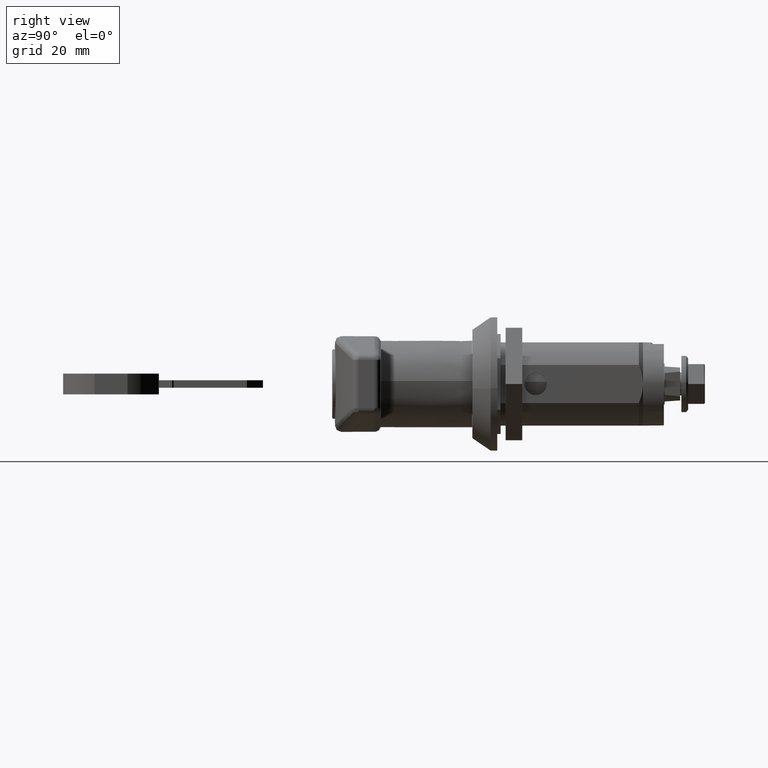
[diagram: clean part render]
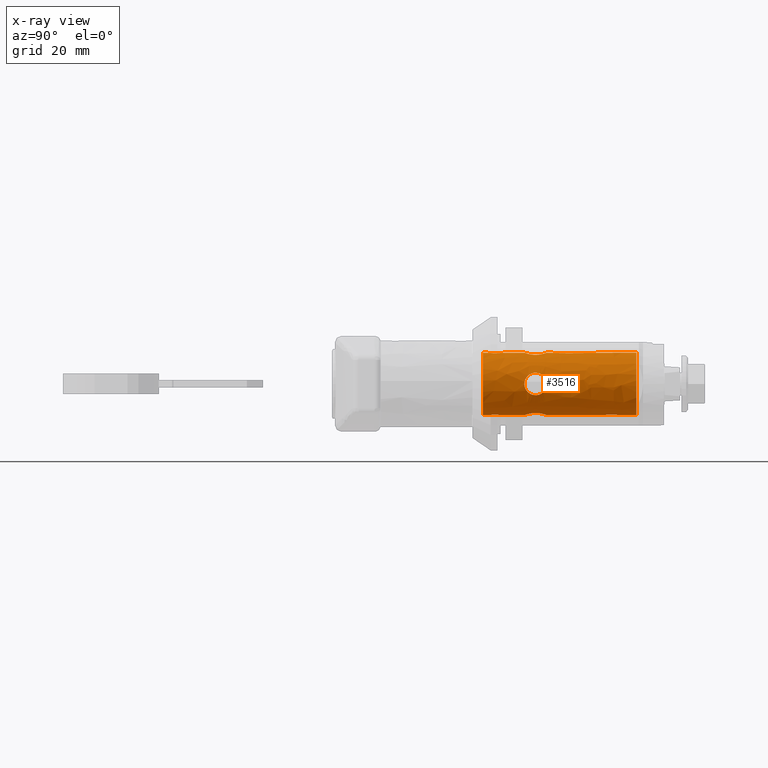
[diagram: x-ray — body ghosted, one internal face saturated and labeled with its STEP entity id]
A machine part, right view, then the same camera in x-ray: the body is ghosted and one INTERNAL B-rep face — a face not visible from any outside direction — is saturated and labeled: STEP entity #3516.
In plain terms, the highlighted face is a freeform B-spline surface patch.
Its self-contained STEP definition (entity closure, byte-faithful):
#2931=CARTESIAN_POINT('',(34.322499715015304,5.687844982534621,-4.888541153176699));
#2932=CARTESIAN_POINT('',(34.322499715015297,1.071277839172529,-10.259877128055640));
#2933=CARTESIAN_POINT('',(34.322499715015297,-4.555298304420883,-5.958065504501604));
#2934=CARTESIAN_POINT('',(34.322499715015311,-10.513423626847409,-1.402767200080722));
#2935=CARTESIAN_POINT('',(34.322499715015297,-5.958125322426525,4.555358122345804));
#2936=CARTESIAN_POINT('',(34.322499715015311,-1.402827018005643,10.513483444772330));
#2937=CARTESIAN_POINT('',(34.322499715015297,4.555298304420883,5.958185140351446));
#2938=CARTESIAN_POINT('',(-4.445562784984761,5.687844982534621,-4.888541153176699));
#2939=CARTESIAN_POINT('',(-4.445562784984761,1.071277839172529,-10.259877128055640));
#2940=CARTESIAN_POINT('',(-4.445562784984761,-4.555298304420883,-5.958065504501604));
#2941=CARTESIAN_POINT('',(-4.445562784984761,-10.513423626847409,-1.402767200080722));
#2942=CARTESIAN_POINT('',(-4.445562784984759,-5.958125322426525,4.555358122345804));
#2943=CARTESIAN_POINT('',(-4.445562784984758,-1.402827018005643,10.513483444772330));
#2944=CARTESIAN_POINT('',(-4.445562784984757,4.555298304420883,5.958185140351446));
#2952=(BOUNDED_SURFACE()B_SPLINE_SURFACE(2,1,((#2931,#2938),(#2932,#2939),(#2933,#2940),(#2934,#2941),(#2935,#2942),(#2936,#2943),(#2937,#2944)),.UNSPECIFIED.,.F.,.F.,.U.)B_SPLINE_SURFACE_WITH_KNOTS((3,2,2,3),(2,2),(0.0,11.929350596345140,24.355757467537980,36.782164338730837),(0.0,38.768062500000070),.UNSPECIFIED.)GEOMETRIC_REPRESENTATION_ITEM()RATIONAL_B_SPLINE_SURFACE(((0.977505800795127,0.977505800795127),(0.718822509939086,0.718822509939086),(1.0,1.0),(0.707106781186548,0.707106781186548),(1.0,1.0),(0.707106781186548,0.707106781186548),(1.0,1.0)))REPRESENTATION_ITEM('')SURFACE());
#2953=CARTESIAN_POINT('',(33.399999715015312,5.687845201488536,-4.888540898425690));
#2954=VERTEX_POINT('',#2953);
#2955=CARTESIAN_POINT('',(33.399999715015312,0.0,-7.499940182075079));
#2956=VERTEX_POINT('',#2955);
#2957=CARTESIAN_POINT('',(33.399999715015312,5.687845201488535,-4.888540898425690));
#2958=CARTESIAN_POINT('',(33.399999715015305,3.443394658302696,-7.499940182075079));
#2959=CARTESIAN_POINT('',(33.399999715015312,0.0,-7.499940182075079));
#2967=(BOUNDED_CURVE()B_SPLINE_CURVE(2,(#2957,#2958,#2959),.UNSPECIFIED.,.F.,.U.)B_SPLINE_CURVE_WITH_KNOTS((3,3),(0.863613843155698,1.0),.UNSPECIFIED.)CURVE()GEOMETRIC_REPRESENTATION_ITEM()RATIONAL_B_SPLINE_CURVE((0.854768495064645,0.840213678081104,1.0))REPRESENTATION_ITEM(''));
#2968=EDGE_CURVE('',#2954,#2956,#2967,.T.);
#2969=ORIENTED_EDGE('',*,*,#2968,.F.);
#2970=CARTESIAN_POINT('',(-3.500000284984760,5.687845198849672,-4.888540901495984));
#2971=VERTEX_POINT('',#2970);
#2972=CARTESIAN_POINT('',(33.399999715015312,5.687845201488536,-4.888540898425690));
#2973=CARTESIAN_POINT('',(-3.500000284984760,5.687845198849672,-4.888540901495984));
#2974=QUASI_UNIFORM_CURVE('',1,(#2972,#2973),.UNSPECIFIED.,.F.,.U.);
#2975=EDGE_CURVE('',#2954,#2971,#2974,.T.);
#2976=ORIENTED_EDGE('',*,*,#2975,.T.);
#2977=CARTESIAN_POINT('',(-3.500000284984760,0.0,-7.499940182075079));
#2978=VERTEX_POINT('',#2977);
#2979=CARTESIAN_POINT('',(-3.500000284984760,5.687845198849673,-4.888540901495984));
#2980=CARTESIAN_POINT('',(-3.500000284984759,3.443394653400818,-7.499940182075078));
#2981=CARTESIAN_POINT('',(-3.500000284984760,0.0,-7.499940182075079));
#2989=(BOUNDED_CURVE()B_SPLINE_CURVE(2,(#2979,#2980,#2981),.UNSPECIFIED.,.F.,.U.)B_SPLINE_CURVE_WITH_KNOTS((3,3),(0.863613843318829,1.0),.UNSPECIFIED.)CURVE()GEOMETRIC_REPRESENTATION_ITEM()RATIONAL_B_SPLINE_CURVE((0.854768495029828,0.840213678272224,1.0))REPRESENTATION_ITEM(''));
#2990=EDGE_CURVE('',#2971,#2978,#2989,.T.);
#2991=ORIENTED_EDGE('',*,*,#2990,.T.);
#2992=CARTESIAN_POINT('',(-3.500000284984760,0.0,7.500059817924920));
#2993=VERTEX_POINT('',#2992);
#2994=CARTESIAN_POINT('',(-3.500000284984760,0.0,-7.499940182075079));
#2995=CARTESIAN_POINT('',(-3.500000284984759,-7.500000000000000,-7.499940182075079));
#2996=CARTESIAN_POINT('',(-3.500000284984760,-7.500000000000000,0.000059817924921));
#2997=CARTESIAN_POINT('',(-3.500000284984759,-7.500000000000000,7.500059817924921));
#2998=CARTESIAN_POINT('',(-3.500000284984760,0.0,7.500059817924920));
#3006=(BOUNDED_CURVE()B_SPLINE_CURVE(2,(#2994,#2995,#2996,#2997,#2998),.UNSPECIFIED.,.F.,.U.)B_SPLINE_CURVE_WITH_KNOTS((3,2,3),(0.0,0.250000000000000,0.500000000000000),.UNSPECIFIED.)CURVE()GEOMETRIC_REPRESENTATION_ITEM()RATIONAL_B_SPLINE_CURVE((1.0,0.707106781186547,1.0,0.707106781186547,1.0))REPRESENTATION_ITEM(''));
#3007=EDGE_CURVE('',#2978,#2993,#3006,.T.);
#3008=ORIENTED_EDGE('',*,*,#3007,.T.);
#3009=CARTESIAN_POINT('',(-3.500000284984755,4.555293379714286,5.958188905540659));
#3010=VERTEX_POINT('',#3009);
#3011=CARTESIAN_POINT('',(-3.500000284984760,0.0,7.500059817924920));
#3012=CARTESIAN_POINT('',(-3.500000284984759,2.538592112279726,7.500059817924921));
#3013=CARTESIAN_POINT('',(-3.500000284984755,4.555293379714287,5.958188905540659));
#3021=(BOUNDED_CURVE()B_SPLINE_CURVE(2,(#3011,#3012,#3013),.UNSPECIFIED.,.F.,.U.)B_SPLINE_CURVE_WITH_KNOTS((3,3),(0.500000000000000,0.604955367462468),.UNSPECIFIED.)CURVE()GEOMETRIC_REPRESENTATION_ITEM()RATIONAL_B_SPLINE_CURVE((1.0,0.877037138368677,0.857319175351370))REPRESENTATION_ITEM(''));
#3022=EDGE_CURVE('',#2993,#3010,#3021,.T.);
#3023=ORIENTED_EDGE('',*,*,#3022,.T.);
#3024=CARTESIAN_POINT('',(33.399999715015383,4.555293319633844,5.958188951475139));
#3025=VERTEX_POINT('',#3024);
#3026=CARTESIAN_POINT('',(33.399999715015383,4.555293319633844,5.958188951475139));
#3027=CARTESIAN_POINT('',(-3.500000284984755,4.555293379714286,5.958188905540659));
#3028=QUASI_UNIFORM_CURVE('',1,(#3026,#3027),.UNSPECIFIED.,.F.,.U.);
#3029=EDGE_CURVE('',#3025,#3010,#3028,.T.);
#3030=ORIENTED_EDGE('',*,*,#3029,.F.);
#3031=CARTESIAN_POINT('',(33.399999715015312,0.0,7.500059817924920));
#3032=VERTEX_POINT('',#3031);
#3033=CARTESIAN_POINT('',(33.399999715015312,0.0,7.500059817924920));
#3034=CARTESIAN_POINT('',(33.399999715015305,2.538592070133298,7.500059817924921));
#3035=CARTESIAN_POINT('',(33.399999715015390,4.555293319633843,5.958188951475139));
#3043=(BOUNDED_CURVE()B_SPLINE_CURVE(2,(#3033,#3034,#3035),.UNSPECIFIED.,.F.,.U.)B_SPLINE_CURVE_WITH_KNOTS((3,3),(0.500000000000000,0.604955365934231),.UNSPECIFIED.)CURVE()GEOMETRIC_REPRESENTATION_ITEM()RATIONAL_B_SPLINE_CURVE((1.0,0.877037140159117,0.857319175925590))REPRESENTATION_ITEM(''));
#3044=EDGE_CURVE('',#3032,#3025,#3043,.T.);
#3045=ORIENTED_EDGE('',*,*,#3044,.F.);
#3046=CARTESIAN_POINT('',(33.399999715015312,0.0,-7.499940182075079));
#3047=CARTESIAN_POINT('',(33.399999715015298,-7.500000000000000,-7.499940182075079));
#3048=CARTESIAN_POINT('',(33.399999715015312,-7.500000000000000,0.000059817924921));
#3049=CARTESIAN_POINT('',(33.399999715015298,-7.500000000000000,7.500059817924921));
#3050=CARTESIAN_POINT('',(33.399999715015312,0.0,7.500059817924920));
#3058=(BOUNDED_CURVE()B_SPLINE_CURVE(2,(#3046,#3047,#3048,#3049,#3050),.UNSPECIFIED.,.F.,.U.)B_SPLINE_CURVE_WITH_KNOTS((3,2,3),(0.0,0.250000000000000,0.500000000000000),.UNSPECIFIED.)CURVE()GEOMETRIC_REPRESENTATION_ITEM()RATIONAL_B_SPLINE_CURVE((1.0,0.707106781186547,1.0,0.707106781186547,1.0))REPRESENTATION_ITEM(''));
#3059=EDGE_CURVE('',#2956,#3032,#3058,.T.);
#3060=ORIENTED_EDGE('',*,*,#3059,.F.);
#3061=EDGE_LOOP('',(#2969,#2976,#2991,#3008,#3023,#3030,#3045,#3060));
#3062=FACE_OUTER_BOUND('',#3061,.T.);
#3063=CARTESIAN_POINT('',(9.200000436976493,-6.997142224328951,-2.699940310318206));
#3064=VERTEX_POINT('',#3063);
#3065=CARTESIAN_POINT('',(6.500922286345380,-7.499667272586390,-0.070618030298371));
#3066=VERTEX_POINT('',#3065);
#3067=CARTESIAN_POINT('',(9.200000436976493,-6.997142224328951,-2.699940310318206));
#3068=CARTESIAN_POINT('',(9.019978000232202,-6.997142224329012,-2.699940307478623));
#3069=CARTESIAN_POINT('',(8.843296185095907,-7.004091317242306,-2.682119283430979));
#3070=CARTESIAN_POINT('',(8.582994913152220,-7.023760395034708,-2.629984828432132));
#3071=CARTESIAN_POINT('',(8.497020098257821,-7.031857323734833,-2.608339917970426));
#3072=CARTESIAN_POINT('',(8.369257379448987,-7.046158054440178,-2.569346389895856));
#3073=CARTESIAN_POINT('',(8.326761300261488,-7.051299410810565,-2.555215810111102));
#3074=CARTESIAN_POINT('',(8.243021733479482,-7.062158683257149,-2.525048425384778));
#3075=CARTESIAN_POINT('',(8.201712120274975,-7.067881886499142,-2.508997832714048));
#3076=CARTESIAN_POINT('',(7.997885601281960,-7.097821230733318,-2.424013132876124));
#3077=CARTESIAN_POINT('',(7.843452523276336,-7.125995264576594,-2.341033336102261));
#3078=CARTESIAN_POINT('',(7.624239752729543,-7.172023499937681,-2.194184976875738));
#3079=CARTESIAN_POINT('',(7.552952737973148,-7.188074937719358,-2.141191492472541));
#3080=CARTESIAN_POINT('',(7.417162093818700,-7.220399480182492,-2.029523839609277));
#3081=CARTESIAN_POINT('',(7.352415694611361,-7.236714156852774,-1.970736744140125));
#3082=CARTESIAN_POINT('',(7.167325268859246,-7.285437808967878,-1.785627702139074));
#3083=CARTESIAN_POINT('',(7.055929160639894,-7.317664810662246,-1.650504449900696));
#3084=CARTESIAN_POINT('',(6.858563652801960,-7.377906548295433,-1.356065418482295));
#3085=CARTESIAN_POINT('',(6.775641730954193,-7.404962231361491,-1.201339526162478));
#3086=CARTESIAN_POINT('',(6.674178744402022,-7.439003468386915,-0.958028806741774));
#3087=CARTESIAN_POINT('',(6.644207662032840,-7.449261356868416,-0.875041693923085));
#3088=CARTESIAN_POINT('',(6.592210202072740,-7.467261140494708,-0.705141215394882));
#3089=CARTESIAN_POINT('',(6.570143854533312,-7.475017870509393,-0.617817013920480));
#3090=CARTESIAN_POINT('',(6.522165661907524,-7.491995872207235,-0.378413386886494));
#3091=CARTESIAN_POINT('',(6.504943187807220,-7.498212362952954,-0.225122517864502));
#3092=CARTESIAN_POINT('',(6.500922286345380,-7.499667272586390,-0.070618030298371));
#3093=B_SPLINE_CURVE_WITH_KNOTS('',3,(#3067,#3068,#3069,#3070,#3071,#3072,#3073,#3074,#3075,#3076,#3077,#3078,#3079,#3080,#3081,#3082,#3083,#3084,#3085,#3086,#3087,#3088,#3089,#3090,#3091,#3092),.UNSPECIFIED.,.F.,.U.,(4,2,2,2,2,2,2,2,2,2,2,2,4),(0.0,0.031250000000000,0.046875000000000,0.054687500000000,0.062500000000000,0.093750000000000,0.109375000000000,0.125000000000000,0.156250000000000,0.187500000000000,0.203125000000000,0.218750000000000,0.245961239676139),.UNSPECIFIED.);
#3094=EDGE_CURVE('',#3064,#3066,#3093,.T.);
#3095=ORIENTED_EDGE('',*,*,#3094,.F.);
#3096=CARTESIAN_POINT('',(11.899075409269990,-7.499666977338961,0.070737583461391));
#3097=VERTEX_POINT('',#3096);
#3098=CARTESIAN_POINT('',(11.899075409269990,-7.499666977338961,0.070737583461391));
#3099=CARTESIAN_POINT('',(11.899696762539490,-7.499890570216899,0.047012065021035));
#3100=CARTESIAN_POINT('',(11.900004223693500,-7.500001317050645,0.023312550084161));
#3101=CARTESIAN_POINT('',(11.899972788187890,-7.499990000268207,-0.178295688080510));
#3102=CARTESIAN_POINT('',(11.882527531138759,-7.493655802824860,-0.354785295844827));
#3103=CARTESIAN_POINT('',(11.838735942462380,-7.478158682035270,-0.573584015759407));
#3104=CARTESIAN_POINT('',(11.828838235837649,-7.474669370283182,-0.617367212491177));
#3105=CARTESIAN_POINT('',(11.806927258460480,-7.466991460749171,-0.704168027333263));
#3106=CARTESIAN_POINT('',(11.794944152316150,-7.462813393449652,-0.747094650319952));
#3107=CARTESIAN_POINT('',(11.755983310882860,-7.449325739147438,-0.874491616556545));
#3108=CARTESIAN_POINT('',(11.696020180083311,-7.428800782171026,-1.040673045759241));
#3109=CARTESIAN_POINT('',(11.620391121441660,-7.403831907992844,-1.199731773193288));
#3110=CARTESIAN_POINT('',(11.536865670520379,-7.376948893418828,-1.355245242870480));
#3111=CARTESIAN_POINT('',(11.490884434868830,-7.362469474634823,-1.431593623620516));
#3112=CARTESIAN_POINT('',(11.343394618168460,-7.317470176640822,-1.651298283894910));
#3113=CARTESIAN_POINT('',(11.232269875002540,-7.285317342604910,-1.786142911857269));
#3114=CARTESIAN_POINT('',(11.046541505963701,-7.236445662651180,-1.971727801237511));
#3115=CARTESIAN_POINT('',(10.981318832918500,-7.220020069674957,-2.030880707724257));
#3116=CARTESIAN_POINT('',(10.844662786173940,-7.187524526682007,-2.143045499967304));
#3117=CARTESIAN_POINT('',(10.774099935374810,-7.171661390899731,-2.195361691695756));
#3118=CARTESIAN_POINT('',(10.555811022975419,-7.125866678664534,-2.341400179684777));
#3119=CARTESIAN_POINT('',(10.401553617922181,-7.097715080688586,-2.424327779694695));
#3120=CARTESIAN_POINT('',(10.156240951322530,-7.061717406685891,-2.526489393082266));
#3121=CARTESIAN_POINT('',(10.071798901996980,-7.050738933753459,-2.556860019960138));
#3122=CARTESIAN_POINT('',(9.902065952000982,-7.031769545123147,-2.608575003891972));
#3123=CARTESIAN_POINT('',(9.816345868320047,-7.023704823378973,-2.630132827068692));
#3124=CARTESIAN_POINT('',(9.556637543835940,-7.004097595294033,-2.682101261976607));
#3125=CARTESIAN_POINT('',(9.380022982830177,-6.997142224328951,-2.699940310318205));
#3126=CARTESIAN_POINT('',(9.200000436976493,-6.997142224328951,-2.699940310318206));
#3127=B_SPLINE_CURVE_WITH_KNOTS('',3,(#3098,#3099,#3100,#3101,#3102,#3103,#3104,#3105,#3106,#3107,#3108,#3109,#3110,#3111,#3112,#3113,#3114,#3115,#3116,#3117,#3118,#3119,#3120,#3121,#3122,#3123,#3124,#3125,#3126),.UNSPECIFIED.,.F.,.U.,(4,2,2,2,2,1,2,2,2,2,2,2,2,2,4),(0.745842268395204,0.750000000000003,0.781250000000003,0.789062500000003,0.796875000000003,0.812500000000003,0.828125000000003,0.843750000000003,0.875000000000002,0.890625000000002,0.906250000000001,0.937500000000001,0.953125000000001,0.968750000000000,1.0),.UNSPECIFIED.);
#3128=EDGE_CURVE('',#3097,#3064,#3127,.T.);
#3129=ORIENTED_EDGE('',*,*,#3128,.F.);
#3130=CARTESIAN_POINT('',(9.198984204133680,-6.997142297548353,2.700059761557961));
#3131=VERTEX_POINT('',#3130);
#3132=CARTESIAN_POINT('',(9.198984204133689,-6.997142297548353,2.700059761557961));
#3133=CARTESIAN_POINT('',(9.287616220264720,-6.997129424464096,2.700093127737148));
#3134=CARTESIAN_POINT('',(9.376259524917538,-6.998801194497919,2.695772986765687));
#3135=CARTESIAN_POINT('',(9.509241638866310,-7.003832331307446,2.682662022338435));
#3136=CARTESIAN_POINT('',(9.553571874090363,-7.005929843794606,2.677184580248373));
#3137=CARTESIAN_POINT('',(9.642238165779665,-7.010963872664452,2.663973394866032));
#3138=CARTESIAN_POINT('',(9.686537107536218,-7.013901341930882,2.656236731339629));
#3139=CARTESIAN_POINT('',(9.905406278524310,-7.030441908559626,2.612394376422940));
#3140=CARTESIAN_POINT('',(10.074286605306829,-7.049707590492915,2.560683735986497));
#3141=CARTESIAN_POINT('',(10.278039885458311,-7.079586390016698,2.475899027943520));
#3142=CARTESIAN_POINT('',(10.318419860316300,-7.085852339728705,2.457924835506180));
#3143=CARTESIAN_POINT('',(10.398435739988431,-7.098921646943308,2.419918341815969));
#3144=CARTESIAN_POINT('',(10.438175720356160,-7.105744283607838,2.399827905594677));
#3145=CARTESIAN_POINT('',(10.555317116159310,-7.126779114370140,2.336932567877676));
#3146=CARTESIAN_POINT('',(10.630676897134490,-7.141552693434647,2.291530394873550));
#3147=CARTESIAN_POINT('',(10.848939003963810,-7.187402829468412,2.145214749264196));
#3148=CARTESIAN_POINT('',(10.984104124837250,-7.220008388258138,2.034300197059899));
#3149=CARTESIAN_POINT('',(11.140147387435180,-7.261078638018302,1.878297809481921));
#3150=CARTESIAN_POINT('',(11.170657958458980,-7.269297305952374,1.846257127641712));
#3151=CARTESIAN_POINT('',(11.229751146828290,-7.285539115226467,1.781084138151093));
#3152=CARTESIAN_POINT('',(11.258413389407140,-7.293583055618168,1.747873787566047));
#3153=CARTESIAN_POINT('',(11.341793023711700,-7.317406452288784,1.646386838505922));
#3154=CARTESIAN_POINT('',(11.446027252195570,-7.348348169491159,1.506131148478076));
#3155=CARTESIAN_POINT('',(11.536532806994391,-7.376843533091890,1.355933556554128));
#3156=CARTESIAN_POINT('',(11.599153117228020,-7.396995492270354,1.239419012847060));
#3157=CARTESIAN_POINT('',(11.619148308915770,-7.403509339831373,1.199935180168270));
#3158=CARTESIAN_POINT('',(11.657341257320200,-7.416076997037555,1.119637150626618));
#3159=CARTESIAN_POINT('',(11.675499106790660,-7.422117960052714,1.078889877635348));
#3160=CARTESIAN_POINT('',(11.760747652292171,-7.450724680687480,0.874159756915602));
#3161=CARTESIAN_POINT('',(11.812232011353050,-7.468780938981746,0.705476344888189));
#3162=CARTESIAN_POINT('',(11.864554453513250,-7.487294659403974,0.445024963765798));
#3163=CARTESIAN_POINT('',(11.877814350799101,-7.492036949195128,0.356962020472816));
#3164=CARTESIAN_POINT('',(11.891162825066710,-7.496821796764782,0.222909891123464));
#3165=CARTESIAN_POINT('',(11.894499799129790,-7.498021197312959,0.178031476807154));
#3166=CARTESIAN_POINT('',(11.897740726872421,-7.499186692586078,0.112468539712171));
#3167=CARTESIAN_POINT('',(11.898529346723450,-7.499470432620823,0.091593015426587));
#3168=CARTESIAN_POINT('',(11.899075409269990,-7.499666977338961,0.070737583461391));
#3169=B_SPLINE_CURVE_WITH_KNOTS('',3,(#3132,#3133,#3134,#3135,#3136,#3137,#3138,#3139,#3140,#3141,#3142,#3143,#3144,#3145,#3146,#3147,#3148,#3149,#3150,#3151,#3152,#3153,#3154,#3155,#3156,#3157,#3158,#3159,#3160,#3161,#3162,#3163,#3164,#3165,#3166,#3167,#3168),.UNSPECIFIED.,.F.,.U.,(4,2,2,2,2,2,2,2,2,2,2,1,2,2,2,2,2,2,4),(0.500000000000000,0.515625000000001,0.523437500000001,0.531250000000002,0.562500000000003,0.570312500000003,0.578125000000003,0.593750000000003,0.625000000000004,0.632812500000004,0.640625000000004,0.656250000000004,0.671875000000004,0.679687500000004,0.687500000000004,0.718750000000003,0.734375000000003,0.742187500000003,0.745842268395202),.UNSPECIFIED.);
#3170=EDGE_CURVE('',#3131,#3097,#3169,.T.);
#3171=ORIENTED_EDGE('',*,*,#3170,.F.);
#3172=CARTESIAN_POINT('',(6.500922286345380,-7.499667272586390,-0.070618030298371));
#3173=CARTESIAN_POINT('',(6.500325466967517,-7.499883213916952,-0.047686088113272));
#3174=CARTESIAN_POINT('',(6.500019468174648,-7.499994261236173,-0.024727410835021));
#3175=CARTESIAN_POINT('',(6.499974415653777,-7.500010465797067,0.042720551111431));
#3176=CARTESIAN_POINT('',(6.501042218154221,-7.499625832780159,0.087283974433142));
#3177=CARTESIAN_POINT('',(6.505411086379545,-7.498054654809064,0.176616020936279));
#3178=CARTESIAN_POINT('',(6.508726490091690,-7.496862958997345,0.221515646423039));
#3179=CARTESIAN_POINT('',(6.521995665202836,-7.492106287824504,0.355490437612785));
#3180=CARTESIAN_POINT('',(6.535205839401936,-7.487381371134818,0.443583407358996));
#3181=CARTESIAN_POINT('',(6.587452254574728,-7.468892844074802,0.704340585117304));
#3182=CARTESIAN_POINT('',(6.638980647968732,-7.450816744632199,0.873514054206159));
#3183=CARTESIAN_POINT('',(6.741742123090238,-7.416333582317510,1.120280520297864));
#3184=CARTESIAN_POINT('',(6.779913118396220,-7.403734036973801,1.200440179515798));
#3185=CARTESIAN_POINT('',(6.863224770253470,-7.376921751264574,1.355499299107475));
#3186=CARTESIAN_POINT('',(6.953683089942782,-7.348435665122016,1.505723067269239));
#3187=CARTESIAN_POINT('',(7.058290163695940,-7.317380581634205,1.646518048098858));
#3188=CARTESIAN_POINT('',(7.142168050541806,-7.293419145180288,1.748561494828933));
#3189=CARTESIAN_POINT('',(7.171110921321529,-7.285299310651398,1.782066500129863));
#3190=CARTESIAN_POINT('',(7.230418966058255,-7.269005712584864,1.847406512610229));
#3191=CARTESIAN_POINT('',(7.260758192726414,-7.260838159153895,1.879223453371414));
#3192=CARTESIAN_POINT('',(7.415832553797682,-7.220036989720506,2.034142251186989));
#3193=CARTESIAN_POINT('',(7.550594422857395,-7.187506002682024,2.144877785840901));
#3194=CARTESIAN_POINT('',(7.732763393152950,-7.149232007576287,2.267026346219482));
#3195=CARTESIAN_POINT('',(7.769889807277544,-7.141697393602605,2.290634323704325));
#3196=CARTESIAN_POINT('',(7.845564637839360,-7.126929298363506,2.336178821366589));
#3197=CARTESIAN_POINT('',(7.884222158773079,-7.119677045621988,2.358170573652039));
#3198=CARTESIAN_POINT('',(8.001266521076367,-7.098666913358025,2.420984840694022));
#3199=CARTESIAN_POINT('',(8.080861975239792,-7.085621266481200,2.458769882760263));
#3200=CARTESIAN_POINT('',(8.324306641572902,-7.049898364833223,2.560151296121085));
#3201=CARTESIAN_POINT('',(8.492768555920584,-7.030626317763984,2.611899896522820));
#3202=CARTESIAN_POINT('',(8.711595991625437,-7.014031230782260,2.655893843394847));
#3203=CARTESIAN_POINT('',(8.755918212972697,-7.011080699146441,2.663665990392376));
#3204=CARTESIAN_POINT('',(8.844515929135458,-7.006026883483076,2.676930698595119));
#3205=CARTESIAN_POINT('',(8.888817692600210,-7.003918480042231,2.682437153374808));
#3206=CARTESIAN_POINT('',(9.021731565228933,-6.998852686835005,2.695639524777294));
#3207=CARTESIAN_POINT('',(9.110352239046533,-6.997155170632639,2.700026396707197));
#3208=CARTESIAN_POINT('',(9.198984204133680,-6.997142297548353,2.700059761557961));
#3209=B_SPLINE_CURVE_WITH_KNOTS('',3,(#3172,#3173,#3174,#3175,#3176,#3177,#3178,#3179,#3180,#3181,#3182,#3183,#3184,#3185,#3186,#3187,#3188,#3189,#3190,#3191,#3192,#3193,#3194,#3195,#3196,#3197,#3198,#3199,#3200,#3201,#3202,#3203,#3204,#3205,#3206,#3207,#3208),.UNSPECIFIED.,.F.,.U.,(4,2,2,2,2,2,2,1,2,2,2,2,2,2,2,2,2,2,4),(0.245961239676139,0.250000000000000,0.257812500000000,0.265625000000000,0.281250000000000,0.312500000000000,0.328124999999999,0.343749999999999,0.359374999999999,0.367187499999999,0.374999999999999,0.406249999999999,0.414062499999999,0.421874999999999,0.437499999999999,0.468749999999999,0.476562500000000,0.484375000000000,0.500000000000000),.UNSPECIFIED.);
#3210=EDGE_CURVE('',#3066,#3131,#3209,.T.);
#3211=ORIENTED_EDGE('',*,*,#3210,.F.);
#3212=EDGE_LOOP('',(#3095,#3129,#3171,#3211));
#3213=FACE_BOUND('',#3212,.T.);
#3214=CARTESIAN_POINT('',(6.500000308733370,-0.000059817924919,-7.499940181836510));
#3215=VERTEX_POINT('',#3214);
#3216=CARTESIAN_POINT('',(9.129322588947069,-2.699137961215478,-6.997416596753433));
#3217=VERTEX_POINT('',#3216);
#3218=CARTESIAN_POINT('',(6.500000308733370,-0.000059817924919,-7.499940181836510));
#3219=CARTESIAN_POINT('',(6.500000311566261,-0.180064894024000,-7.499938746164891));
#3220=CARTESIAN_POINT('',(6.517818760823771,-0.356774527661374,-7.493470559700562));
#3221=CARTESIAN_POINT('',(6.569977651428801,-0.617162828177928,-7.475010814853559));
#3222=CARTESIAN_POINT('',(6.591635256599867,-0.703174050109854,-7.467395474738546));
#3223=CARTESIAN_POINT('',(6.630657105407658,-0.830998524860056,-7.453883851230208));
#3224=CARTESIAN_POINT('',(6.644799673366771,-0.873519861259426,-7.449016927970273));
#3225=CARTESIAN_POINT('',(6.675000264478628,-0.957325336610158,-7.438710865261155));
#3226=CARTESIAN_POINT('',(6.691069251650231,-0.998667552806626,-7.433267744288394));
#3227=CARTESIAN_POINT('',(6.776153218668507,-1.202651292654604,-7.404721022063829));
#3228=CARTESIAN_POINT('',(6.859237712810671,-1.357189654837012,-7.377629500384290));
#3229=CARTESIAN_POINT('',(7.006223895244421,-1.576474889263737,-7.332762932373711));
#3230=CARTESIAN_POINT('',(7.059268873236184,-1.647786013208152,-7.317020522907650));
#3231=CARTESIAN_POINT('',(7.171054122385274,-1.783626239564184,-7.285099067816153));
#3232=CARTESIAN_POINT('',(7.229887882336555,-1.848374336546451,-7.268886102862144));
#3233=CARTESIAN_POINT('',(7.415084982883256,-2.033414514441853,-7.220154258608202));
#3234=CARTESIAN_POINT('',(7.550163782872063,-2.144680927681676,-7.187499322505504));
#3235=CARTESIAN_POINT('',(7.844457046169473,-2.341824247152547,-7.125704681560413));
#3236=CARTESIAN_POINT('',(7.999063925154439,-2.424637248020887,-7.097563313205839));
#3237=CARTESIAN_POINT('',(8.242186111306490,-2.525983005997793,-7.061857738918274));
#3238=CARTESIAN_POINT('',(8.325109021555495,-2.555922328646113,-7.051040296466556));
#3239=CARTESIAN_POINT('',(8.494891582946888,-2.607872830954529,-7.031991809911826));
#3240=CARTESIAN_POINT('',(8.582179257661489,-2.629928571016497,-7.023743299290102));
#3241=CARTESIAN_POINT('',(8.821547279394988,-2.677896856468796,-7.005645926956865));
#3242=CARTESIAN_POINT('',(8.974827367883375,-2.695117299632704,-6.998978311080274));
#3243=CARTESIAN_POINT('',(9.129322588947069,-2.699137961215478,-6.997416596753433));
#3244=B_SPLINE_CURVE_WITH_KNOTS('',3,(#3218,#3219,#3220,#3221,#3222,#3223,#3224,#3225,#3226,#3227,#3228,#3229,#3230,#3231,#3232,#3233,#3234,#3235,#3236,#3237,#3238,#3239,#3240,#3241,#3242,#3243),.UNSPECIFIED.,.F.,.U.,(4,2,2,2,2,2,2,2,2,2,2,2,4),(0.0,0.031250000000000,0.046875000000000,0.054687500000000,0.062500000000001,0.093750000000001,0.109375000000001,0.125000000000001,0.156250000000001,0.187500000000001,0.203125000000001,0.218750000000001,0.245967712998784),.UNSPECIFIED.);
#3245=EDGE_CURVE('',#3215,#3217,#3244,.T.);
#3246=ORIENTED_EDGE('',*,*,#3245,.F.);
#3247=CARTESIAN_POINT('',(9.270678202518894,2.699015154577683,-6.997462431374888));
#3248=VERTEX_POINT('',#3247);
#3249=CARTESIAN_POINT('',(9.270678202518894,2.699015154577683,-6.997462431374888));
#3250=CARTESIAN_POINT('',(9.246979027867038,2.699635817984888,-6.997223065996677));
#3251=CARTESIAN_POINT('',(9.223306607591463,2.699943264116580,-6.997104348404296));
#3252=CARTESIAN_POINT('',(9.021715598419389,2.699917899555742,-6.997114135624787));
#3253=CARTESIAN_POINT('',(8.845261237252023,2.682476032997454,-7.003919206054031));
#3254=CARTESIAN_POINT('',(8.626556273743001,2.638718753041358,-7.020428116121705));
#3255=CARTESIAN_POINT('',(8.582797987078108,2.628830482514742,-7.024140263703452));
#3256=CARTESIAN_POINT('',(8.496021938953099,2.606934111915928,-7.032296190460594));
#3257=CARTESIAN_POINT('',(8.453110565249755,2.594959734191688,-7.036727446979156));
#3258=CARTESIAN_POINT('',(8.325765206071937,2.556029873171315,-7.051002188739418));
#3259=CARTESIAN_POINT('',(8.159667919921319,2.496121337087619,-7.072649375739450));
#3260=CARTESIAN_POINT('',(8.000698093088122,2.420571295705829,-7.098726681849034));
#3261=CARTESIAN_POINT('',(7.845264182881556,2.337133109964048,-7.126632542018624));
#3262=CARTESIAN_POINT('',(7.768964724357356,2.291206914581001,-7.141579892904408));
#3263=CARTESIAN_POINT('',(7.549422410951429,2.143921502792081,-7.187720655123673));
#3264=CARTESIAN_POINT('',(7.414591822655543,2.032908906861552,-7.220304826722837));
#3265=CARTESIAN_POINT('',(7.228915905355695,1.847232180542766,-7.269178747941955));
#3266=CARTESIAN_POINT('',(7.169695157528697,1.781983709485189,-7.285505338826434));
#3267=CARTESIAN_POINT('',(7.057453929241065,1.645331662400841,-7.317577048908609));
#3268=CARTESIAN_POINT('',(7.005089873517603,1.574754930137325,-7.333129583972132));
#3269=CARTESIAN_POINT('',(6.858898422782145,1.356382134680334,-7.377765544678102));
#3270=CARTESIAN_POINT('',(6.775857739039071,1.202010722678557,-7.404836135208819));
#3271=CARTESIAN_POINT('',(6.673567211696041,0.956494429737588,-7.439157000358012));
#3272=CARTESIAN_POINT('',(6.643165123444021,0.871991709423779,-7.449565744104367));
#3273=CARTESIAN_POINT('',(6.591406801769058,0.702165169691705,-7.467486943242081));
#3274=CARTESIAN_POINT('',(6.569834264768979,0.616403537621383,-7.475071241148092));
#3275=CARTESIAN_POINT('',(6.517837134851147,0.356594905607219,-7.493470108574052));
#3276=CARTESIAN_POINT('',(6.500000308733370,0.179945367026406,-7.499941617508060));
#3277=CARTESIAN_POINT('',(6.500000308733370,-0.000059817924919,-7.499940181836510));
#3278=B_SPLINE_CURVE_WITH_KNOTS('',3,(#3249,#3250,#3251,#3252,#3253,#3254,#3255,#3256,#3257,#3258,#3259,#3260,#3261,#3262,#3263,#3264,#3265,#3266,#3267,#3268,#3269,#3270,#3271,#3272,#3273,#3274,#3275,#3276,#3277),.UNSPECIFIED.,.F.,.U.,(4,2,2,2,2,1,2,2,2,2,2,2,2,2,4),(0.745847404772988,0.750000000000002,0.781250000000001,0.789062500000001,0.796875000000001,0.812500000000001,0.828125000000001,0.843750000000001,0.875000000000001,0.890625000000001,0.906250000000001,0.937500000000000,0.953125000000000,0.968750000000000,1.0),.UNSPECIFIED.);
#3279=EDGE_CURVE('',#3248,#3215,#3278,.T.);
#3280=ORIENTED_EDGE('',*,*,#3279,.F.);
#3281=CARTESIAN_POINT('',(11.900000398908301,-0.001039528095993,-7.499940111825800));
#3282=VERTEX_POINT('',#3281);
#3283=CARTESIAN_POINT('',(11.900000398908301,-0.001039528096006,-7.499940111825800));
#3284=CARTESIAN_POINT('',(11.900032576911560,0.087608868347262,-7.499952400617200));
#3285=CARTESIAN_POINT('',(11.895709640462441,0.176275101675531,-7.498393477690465));
#3286=CARTESIAN_POINT('',(11.882589031198391,0.309301591986859,-7.493690992563336));
#3287=CARTESIAN_POINT('',(11.877107459883600,0.353648286190165,-7.491729386449245));
#3288=CARTESIAN_POINT('',(11.863885606633660,0.442350893853073,-7.487015597737057));
#3289=CARTESIAN_POINT('',(11.856146904724531,0.486643326728163,-7.484264084504344));
#3290=CARTESIAN_POINT('',(11.812287474736340,0.705525181197277,-7.468745326237296));
#3291=CARTESIAN_POINT('',(11.760544789384319,0.874481990864146,-7.450604635370073));
#3292=CARTESIAN_POINT('',(11.675677642826670,1.078352762636361,-7.422126537257811));
#3293=CARTESIAN_POINT('',(11.657684988232759,1.118757360714655,-7.416140273922023));
#3294=CARTESIAN_POINT('',(11.619637677947111,1.198823351867188,-7.403619294886608));
#3295=CARTESIAN_POINT('',(11.599524541292491,1.238589907394736,-7.397065857276638));
#3296=CARTESIAN_POINT('',(11.536537395814520,1.355841815438285,-7.376794920052089));
#3297=CARTESIAN_POINT('',(11.491072676331770,1.431258323136012,-7.362481881759226));
#3298=CARTESIAN_POINT('',(11.344585160779671,1.649633727067451,-7.317780794923771));
#3299=CARTESIAN_POINT('',(11.233577027575249,1.784796575233284,-7.285621060076078));
#3300=CARTESIAN_POINT('',(11.077553571265691,1.940749680204270,-7.244561012092799));
#3301=CARTESIAN_POINT('',(11.045496426713740,1.971254483833161,-7.236313230062772));
#3302=CARTESIAN_POINT('',(10.980303251351581,2.030323745242481,-7.219962662592683));
#3303=CARTESIAN_POINT('',(10.947086894487180,2.058970432548079,-7.211838471367458));
#3304=CARTESIAN_POINT('',(10.845594450633470,2.142295174647092,-7.187701731647108));
#3305=CARTESIAN_POINT('',(10.705364763011060,2.246434097928070,-7.156148277490277));
#3306=CARTESIAN_POINT('',(10.555257834334061,2.336827186809351,-7.126732679385407));
#3307=CARTESIAN_POINT('',(10.438830732994861,2.399365298337055,-7.105820093480736));
#3308=CARTESIAN_POINT('',(10.399379295874910,2.419333464725247,-7.099040988234473));
#3309=CARTESIAN_POINT('',(10.319151430975600,2.457474425160218,-7.085928194994372));
#3310=CARTESIAN_POINT('',(10.278435713561191,2.475610188503012,-7.079606855133853));
#3311=CARTESIAN_POINT('',(10.073866838869851,2.560756682352992,-7.049602679415560));
#3312=CARTESIAN_POINT('',(9.905314393343932,2.612192670274683,-7.030433601324899));
#3313=CARTESIAN_POINT('',(9.645010088079738,2.664485103745111,-7.010708057144710));
#3314=CARTESIAN_POINT('',(9.556987973203571,2.677741764418571,-7.005637143309697));
#3315=CARTESIAN_POINT('',(9.422978995708846,2.691091689438799,-7.000515032501609));
#3316=CARTESIAN_POINT('',(9.378078364917371,2.694432664314105,-6.999228590688296));
#3317=CARTESIAN_POINT('',(9.312473697128541,2.697678041175160,-6.997978079745211));
#3318=CARTESIAN_POINT('',(9.291565558831419,2.698468256451346,-6.997673396914591));
#3319=CARTESIAN_POINT('',(9.270678202518894,2.699015154577683,-6.997462431374888));
#3320=B_SPLINE_CURVE_WITH_KNOTS('',3,(#3283,#3284,#3285,#3286,#3287,#3288,#3289,#3290,#3291,#3292,#3293,#3294,#3295,#3296,#3297,#3298,#3299,#3300,#3301,#3302,#3303,#3304,#3305,#3306,#3307,#3308,#3309,#3310,#3311,#3312,#3313,#3314,#3315,#3316,#3317,#3318,#3319),.UNSPECIFIED.,.F.,.U.,(4,2,2,2,2,2,2,2,2,2,2,1,2,2,2,2,2,2,4),(0.499999999999999,0.515624999999999,0.523437499999999,0.531249999999999,0.562499999999999,0.570312499999999,0.578124999999999,0.593749999999998,0.624999999999998,0.632812499999998,0.640624999999999,0.656249999999999,0.671874999999999,0.679687500000000,0.687500000000000,0.718750000000001,0.734375000000002,0.742187500000002,0.745847404772987),.UNSPECIFIED.);
#3321=EDGE_CURVE('',#3282,#3248,#3320,.T.);
#3322=ORIENTED_EDGE('',*,*,#3321,.F.);
#3323=CARTESIAN_POINT('',(9.129322588947069,-2.699137961215478,-6.997416596753433));
#3324=CARTESIAN_POINT('',(9.152210957729047,-2.699733646693754,-6.997185229761666));
#3325=CARTESIAN_POINT('',(9.175125996526354,-2.700039620279640,-6.997065928299445));
#3326=CARTESIAN_POINT('',(9.242516986164999,-2.700087902013494,-6.997047312596090));
#3327=CARTESIAN_POINT('',(9.287067203768510,-2.699022905257456,-6.997458588305039));
#3328=CARTESIAN_POINT('',(9.376372951862299,-2.694660984060715,-6.999139493095952));
#3329=CARTESIAN_POINT('',(9.421253906841265,-2.691350599338696,-7.000414301726441));
#3330=CARTESIAN_POINT('',(9.555262578682132,-2.678087691311415,-7.005503691459731));
#3331=CARTESIAN_POINT('',(9.643358540714145,-2.664881509424935,-7.010556214145278));
#3332=CARTESIAN_POINT('',(9.904079387651033,-2.612660565222259,-7.030258458168452));
#3333=CARTESIAN_POINT('',(10.073168211743500,-2.561168371448829,-7.049455614881097));
#3334=CARTESIAN_POINT('',(10.319773265314611,-2.458519858679094,-7.085628892700045));
#3335=CARTESIAN_POINT('',(10.399849153357710,-2.420408104840106,-7.098780771313864));
#3336=CARTESIAN_POINT('',(10.554799663534780,-2.337203991200426,-7.126607822638464));
#3337=CARTESIAN_POINT('',(10.704941010568470,-2.246855335460671,-7.156016153415258));
#3338=CARTESIAN_POINT('',(10.845718113529450,-2.142338597946969,-7.187691042414807));
#3339=CARTESIAN_POINT('',(10.947774065490171,-2.058510439026393,-7.211969976935564));
#3340=CARTESIAN_POINT('',(10.981288420546010,-2.029579878696883,-7.220171719062274));
#3341=CARTESIAN_POINT('',(11.046617359991760,-1.970325027125361,-7.236566310175999));
#3342=CARTESIAN_POINT('',(11.078434321400810,-1.940008719170100,-7.244758135798790));
#3343=CARTESIAN_POINT('',(11.233377136304320,-1.785028095052535,-7.285549743412012));
#3344=CARTESIAN_POINT('',(11.344208756363720,-1.650272120088773,-7.317641324292778));
#3345=CARTESIAN_POINT('',(11.466507171898529,-1.468007998793993,-7.354961172343488));
#3346=CARTESIAN_POINT('',(11.490146590499689,-1.430857577345294,-7.362285501250413));
#3347=CARTESIAN_POINT('',(11.535755214562640,-1.355124983823894,-7.376600581051805));
#3348=CARTESIAN_POINT('',(11.557779068505390,-1.316434415134128,-7.383609173447397));
#3349=CARTESIAN_POINT('',(11.620674747632940,-1.199305498061535,-7.403854271208692));
#3350=CARTESIAN_POINT('',(11.658508726507129,-1.119647357036761,-7.416348501481258));
#3351=CARTESIAN_POINT('',(11.760014241248340,-0.876010765485070,-7.450410064727127));
#3352=CARTESIAN_POINT('',(11.811813535216830,-0.707415542023556,-7.468567726927336));
#3353=CARTESIAN_POINT('',(11.855833605586300,-0.488471114724861,-7.484145072695776));
#3354=CARTESIAN_POINT('',(11.863608090986570,-0.444132975890874,-7.486909761460029));
#3355=CARTESIAN_POINT('',(11.876872027186700,-0.355538758000599,-7.491639579789879));
#3356=CARTESIAN_POINT('',(11.882378437943441,-0.311237054366862,-7.493610638667930));
#3357=CARTESIAN_POINT('',(11.895580931171651,-0.178318379496779,-7.498344322524799));
#3358=CARTESIAN_POINT('',(11.899968222230680,-0.089687873602167,-7.499927823034368));
#3359=CARTESIAN_POINT('',(11.900000398908301,-0.001039528095993,-7.499940111825800));
#3360=B_SPLINE_CURVE_WITH_KNOTS('',3,(#3323,#3324,#3325,#3326,#3327,#3328,#3329,#3330,#3331,#3332,#3333,#3334,#3335,#3336,#3337,#3338,#3339,#3340,#3341,#3342,#3343,#3344,#3345,#3346,#3347,#3348,#3349,#3350,#3351,#3352,#3353,#3354,#3355,#3356,#3357,#3358,#3359),.UNSPECIFIED.,.F.,.U.,(4,2,2,2,2,2,2,1,2,2,2,2,2,2,2,2,2,2,4),(0.245967712998784,0.250000000000002,0.257812500000002,0.265625000000001,0.281250000000001,0.312500000000001,0.328125000000001,0.343750000000001,0.359375000000001,0.367187500000001,0.375000000000000,0.406250000000000,0.414062500000000,0.421875000000000,0.437500000000000,0.468749999999999,0.476562499999999,0.484374999999999,0.499999999999999),.UNSPECIFIED.);
#3361=EDGE_CURVE('',#3217,#3282,#3360,.T.);
#3362=ORIENTED_EDGE('',*,*,#3361,.F.);
#3363=EDGE_LOOP('',(#3246,#3280,#3322,#3362));
#3364=FACE_BOUND('',#3363,.T.);
#3365=CARTESIAN_POINT('',(11.900000380204490,0.000908335930209,7.500059761127786));
#3366=VERTEX_POINT('',#3365);
#3367=CARTESIAN_POINT('',(9.411840003010219,-2.691736135550155,7.000385408340152));
#3368=VERTEX_POINT('',#3367);
#3369=CARTESIAN_POINT('',(11.900000380204490,0.000908335930209,7.500059761127786));
#3370=CARTESIAN_POINT('',(11.900032178791371,-0.087740073499429,7.500070499258628));
#3371=CARTESIAN_POINT('',(11.895708884460230,-0.176406296043139,7.498510028491136));
#3372=CARTESIAN_POINT('',(11.882587704205861,-0.309432734691230,7.493805214461125));
#3373=CARTESIAN_POINT('',(11.877105942582441,-0.353779405736255,7.491842831751496));
#3374=CARTESIAN_POINT('',(11.863883709083581,-0.442481955182072,7.487127489151204));
#3375=CARTESIAN_POINT('',(11.856144835055920,-0.486774249704727,7.484375205983450));
#3376=CARTESIAN_POINT('',(11.812284565364060,-0.705655502225240,7.468852644202941));
#3377=CARTESIAN_POINT('',(11.760541293174651,-0.874611806286880,7.450709030867370));
#3378=CARTESIAN_POINT('',(11.675673491881390,-1.078481924748980,7.422227406110717));
#3379=CARTESIAN_POINT('',(11.657680710300999,-1.118886391121674,7.416240443845734));
#3380=CARTESIAN_POINT('',(11.619633153283839,-1.198952117072236,7.403718079452695));
#3381=CARTESIAN_POINT('',(11.599519894206111,-1.238718540589184,7.397163952918616));
#3382=CARTESIAN_POINT('',(11.536532513032061,-1.355969847184878,7.376891021123642));
#3383=CARTESIAN_POINT('',(11.491067659324770,-1.431385975208269,7.362576700180390));
#3384=CARTESIAN_POINT('',(11.344579789403920,-1.649760295882065,7.317871893416477));
#3385=CARTESIAN_POINT('',(11.233571485140660,-1.784922495964279,7.285709847227523));
#3386=CARTESIAN_POINT('',(11.077547830336989,-1.940874868136528,7.244647110370626));
#3387=CARTESIAN_POINT('',(11.045490694485540,-1.971379483365110,7.236398813589120));
#3388=CARTESIAN_POINT('',(10.980297527595409,-2.030448397248061,7.220047244071595));
#3389=CARTESIAN_POINT('',(10.947081175922630,-2.059094918346389,7.211922565732004));
#3390=CARTESIAN_POINT('',(10.845588748036100,-2.142419182182536,7.187784405837709));
#3391=CARTESIAN_POINT('',(10.705359405530460,-2.246557758321262,7.156228402671197));
#3392=CARTESIAN_POINT('',(10.555252152236470,-2.336950114273709,7.126812007031196));
#3393=CARTESIAN_POINT('',(10.438825029390269,-2.399487878075207,7.105898337997965));
#3394=CARTESIAN_POINT('',(10.399373581728700,-2.419455932665016,7.099118886537077));
#3395=CARTESIAN_POINT('',(10.319145686855450,-2.457596676253933,7.086005432069730));
#3396=CARTESIAN_POINT('',(10.278429990623970,-2.475732316335178,7.079683784241673));
#3397=CARTESIAN_POINT('',(10.073861178365121,-2.560878234370954,7.049678160375171));
#3398=CARTESIAN_POINT('',(9.905308754179389,-2.612313825504637,7.030508219664540));
#3399=CARTESIAN_POINT('',(9.645004406415028,-2.664605687707721,7.010781862917654));
#3400=CARTESIAN_POINT('',(9.556982264938982,-2.677862162028698,7.005710758992267));
#3401=CARTESIAN_POINT('',(9.449070933350354,-2.688612015912699,7.001586034019907));
#3402=CARTESIAN_POINT('',(9.430459041985841,-2.690270408231035,7.000948917378784));
#3403=CARTESIAN_POINT('',(9.411840003010219,-2.691736135550155,7.000385408340152));
#3404=B_SPLINE_CURVE_WITH_KNOTS('',3,(#3369,#3370,#3371,#3372,#3373,#3374,#3375,#3376,#3377,#3378,#3379,#3380,#3381,#3382,#3383,#3384,#3385,#3386,#3387,#3388,#3389,#3390,#3391,#3392,#3393,#3394,#3395,#3396,#3397,#3398,#3399,#3400,#3401,#3402,#3403),.UNSPECIFIED.,.F.,.U.,(4,2,2,2,2,2,2,2,2,2,2,1,2,2,2,2,2,4),(0.500000000000002,0.515625000000002,0.523437500000002,0.531250000000002,0.562500000000002,0.570312500000001,0.578125000000001,0.593750000000001,0.625000000000001,0.632812500000001,0.640625000000001,0.656250000000000,0.671875000000000,0.679687500000000,0.687500000000000,0.718750000000000,0.734375000000000,0.737623143347952),.UNSPECIFIED.);
#3405=EDGE_CURVE('',#3366,#3368,#3404,.T.);
#3406=ORIENTED_EDGE('',*,*,#3405,.F.);
#3407=CARTESIAN_POINT('',(9.142450746933839,2.699329154877543,6.997461998201896));
#3408=VERTEX_POINT('',#3407);
#3409=CARTESIAN_POINT('',(9.142450746933839,2.699329154877543,6.997461998201896));
#3410=CARTESIAN_POINT('',(9.160974261321863,2.699721434089061,6.997309527854934));
#3411=CARTESIAN_POINT('',(9.179515230153106,2.699924153266609,6.997230499652314));
#3412=CARTESIAN_POINT('',(9.242522951826263,2.699969143696109,6.997213149474240));
#3413=CARTESIAN_POINT('',(9.287073195936909,2.698904038873562,6.997624442757949));
#3414=CARTESIAN_POINT('',(9.376379002659833,2.694541896743976,6.999305340262263));
#3415=CARTESIAN_POINT('',(9.421260015037221,2.691231395377581,7.000580125202401));
#3416=CARTESIAN_POINT('',(9.555268544371769,2.677968167743931,7.005669365992916));
#3417=CARTESIAN_POINT('',(9.643364438124902,2.664761778853630,7.010721700313774));
#3418=CARTESIAN_POINT('',(9.904085147823077,2.612540202696177,7.030423134130968));
#3419=CARTESIAN_POINT('',(10.073173970278731,2.561047573625336,7.049619426186658));
#3420=CARTESIAN_POINT('',(10.319779116780360,2.458398280369309,7.085790965114877));
#3421=CARTESIAN_POINT('',(10.399854911026020,2.420286314009296,7.098942173306519));
#3422=CARTESIAN_POINT('',(10.554805377251190,2.337081697725562,7.126767781892779));
#3423=CARTESIAN_POINT('',(10.704946701336951,2.246732510158437,7.156174547673859));
#3424=CARTESIAN_POINT('',(10.845723798350170,2.142215162903392,7.187847639511833));
#3425=CARTESIAN_POINT('',(10.947779743441410,2.058386509659320,7.212125139382057));
#3426=CARTESIAN_POINT('',(10.981294096586790,2.029455776695405,7.220326387702739));
#3427=CARTESIAN_POINT('',(11.046622993999319,1.970200603387904,7.236719960327473));
#3428=CARTESIAN_POINT('',(11.078439931716440,1.939884132058412,7.244911265439738));
#3429=CARTESIAN_POINT('',(11.233382611928700,1.784902678641664,7.285700214959635));
#3430=CARTESIAN_POINT('',(11.344214072158740,1.650146000700915,7.317789494147299));
#3431=CARTESIAN_POINT('',(11.466512181677370,1.467880951920793,7.355106232824855));
#3432=CARTESIAN_POINT('',(11.490151533760629,1.430730342517337,7.362429928086852));
#3433=CARTESIAN_POINT('',(11.535760013039390,1.354997368073359,7.376743716072185));
#3434=CARTESIAN_POINT('',(11.557783785247510,1.316306610595440,7.383751647453855));
#3435=CARTESIAN_POINT('',(11.620679169046291,1.199177194775728,7.403994732360499));
#3436=CARTESIAN_POINT('',(11.658512927699160,1.119518731916708,7.416487592202184));
#3437=CARTESIAN_POINT('',(11.760017712824970,0.875881213560566,7.450544957108471));
#3438=CARTESIAN_POINT('',(11.811816428780119,0.707285423688867,7.468699705232948));
#3439=CARTESIAN_POINT('',(11.855835662535060,0.488340375877262,7.484273246805522));
#3440=CARTESIAN_POINT('',(11.863609971303230,0.444002128710141,7.487037163145381));
#3441=CARTESIAN_POINT('',(11.876873536148610,0.355407808711096,7.491765432206432));
#3442=CARTESIAN_POINT('',(11.882379760323770,0.311106060164535,7.493735716409223));
#3443=CARTESIAN_POINT('',(11.895581691652660,0.178187268956197,7.498467075967436));
#3444=CARTESIAN_POINT('',(11.899968582367601,0.089556709943786,7.500049022996782));
#3445=CARTESIAN_POINT('',(11.900000380204490,0.000908335930209,7.500059761127786));
#3446=B_SPLINE_CURVE_WITH_KNOTS('',3,(#3409,#3410,#3411,#3412,#3413,#3414,#3415,#3416,#3417,#3418,#3419,#3420,#3421,#3422,#3423,#3424,#3425,#3426,#3427,#3428,#3429,#3430,#3431,#3432,#3433,#3434,#3435,#3436,#3437,#3438,#3439,#3440,#3441,#3442,#3443,#3444,#3445),.UNSPECIFIED.,.F.,.U.,(4,2,2,2,2,2,2,1,2,2,2,2,2,2,2,2,2,2,4),(0.246738131649004,0.250000000000002,0.257812500000002,0.265625000000002,0.281250000000002,0.312500000000003,0.328125000000003,0.343750000000003,0.359375000000003,0.367187500000003,0.375000000000003,0.406250000000003,0.414062500000003,0.421875000000003,0.437500000000003,0.468750000000003,0.476562500000003,0.484375000000003,0.500000000000002),.UNSPECIFIED.);
#3447=EDGE_CURVE('',#3408,#3366,#3446,.T.);
#3448=ORIENTED_EDGE('',*,*,#3447,.F.);
#3449=CARTESIAN_POINT('',(6.500000308733371,-0.000059817924920,7.500059817686402));
#3450=VERTEX_POINT('',#3449);
#3451=CARTESIAN_POINT('',(6.500000308733371,-0.000059817924920,7.500059817686402));
#3452=CARTESIAN_POINT('',(6.500000310320869,0.179945295447830,7.500061253357641));
#3453=CARTESIAN_POINT('',(6.517818759786270,0.356655077719185,7.493595885190564));
#3454=CARTESIAN_POINT('',(6.569977740758440,0.617043738086193,7.475140292901235));
#3455=CARTESIAN_POINT('',(6.591635390900803,0.703055102867257,7.467526324444541));
#3456=CARTESIAN_POINT('',(6.630657340583531,0.830879822798112,7.454016739816631));
#3457=CARTESIAN_POINT('',(6.644799946971446,0.873401242691658,7.449150495197569));
#3458=CARTESIAN_POINT('',(6.675000615544048,0.957206865015011,7.438845774187560));
#3459=CARTESIAN_POINT('',(6.691069645993706,0.998549157059148,7.433403315745236));
#3460=CARTESIAN_POINT('',(6.776153854008958,1.202533285124595,7.404859866463089));
#3461=CARTESIAN_POINT('',(6.859238619583071,1.357071986577668,7.377770837184878));
#3462=CARTESIAN_POINT('',(7.006225361875241,1.576357721572693,7.332907840810929));
#3463=CARTESIAN_POINT('',(7.059270546302917,1.647668999051424,7.317166601497384));
#3464=CARTESIAN_POINT('',(7.171056180293333,1.783509438478067,7.285247411260690));
#3465=CARTESIAN_POINT('',(7.229890146471789,1.848257630966197,7.269035536414439));
#3466=CARTESIAN_POINT('',(7.415087904791919,2.033298053969486,7.220306841859904));
#3467=CARTESIAN_POINT('',(7.550167386566539,2.144564702888759,7.187653808157767));
#3468=CARTESIAN_POINT('',(7.844461325278270,2.341707816081237,7.125862799908910));
#3469=CARTESIAN_POINT('',(7.999068554038941,2.424520678271870,7.097723016613421));
#3470=CARTESIAN_POINT('',(8.242191271994091,2.525866149411018,7.062019459174802));
#3471=CARTESIAN_POINT('',(8.325114360694920,2.555805363363732,7.051202628346449));
#3472=CARTESIAN_POINT('',(8.494897279660217,2.607755617717962,7.032155234908830));
#3473=CARTESIAN_POINT('',(8.582185038695714,2.629811189392686,7.023907217538318));
#3474=CARTESIAN_POINT('',(8.825857508822534,2.678641564371139,7.005485560023224));
#3475=CARTESIAN_POINT('',(8.983511601490944,2.695963372478101,6.998770254601629));
#3476=CARTESIAN_POINT('',(9.142450746933839,2.699329154877543,6.997461998201896));
#3477=B_SPLINE_CURVE_WITH_KNOTS('',3,(#3451,#3452,#3453,#3454,#3455,#3456,#3457,#3458,#3459,#3460,#3461,#3462,#3463,#3464,#3465,#3466,#3467,#3468,#3469,#3470,#3471,#3472,#3473,#3474,#3475,#3476),.UNSPECIFIED.,.F.,.U.,(4,2,2,2,2,2,2,2,2,2,2,2,4),(0.0,0.031250000000000,0.046875000000000,0.054687500000000,0.062500000000000,0.093750000000001,0.109375000000001,0.125000000000001,0.156250000000001,0.187500000000001,0.203125000000001,0.218750000000002,0.246738131649004),.UNSPECIFIED.);
#3478=EDGE_CURVE('',#3450,#3408,#3477,.T.);
#3479=ORIENTED_EDGE('',*,*,#3478,.F.);
#3480=CARTESIAN_POINT('',(9.411840003010219,-2.691736135550155,7.000385408340152));
#3481=CARTESIAN_POINT('',(9.385676147299900,-2.693794334873913,6.999593936446493));
#3482=CARTESIAN_POINT('',(9.359498175173334,-2.695471493646591,6.998947968302713));
#3483=CARTESIAN_POINT('',(9.288721427562743,-2.698972575002310,6.997598860219943));
#3484=CARTESIAN_POINT('',(9.244141248169912,-2.700065616041778,6.997176772007234));
#3485=CARTESIAN_POINT('',(9.021709880543448,-2.700037156169215,6.997187754149987));
#3486=CARTESIAN_POINT('',(8.845255563730422,-2.682594919313177,7.003993311504462));
#3487=CARTESIAN_POINT('',(8.626550679311885,-2.638837173182445,7.020503241680726));
#3488=CARTESIAN_POINT('',(8.582792393899201,-2.628948804530984,7.024215616272159));
#3489=CARTESIAN_POINT('',(8.496016469358468,-2.607052270095572,7.032372023543323));
#3490=CARTESIAN_POINT('',(8.453105159161728,-2.595077813390612,7.036803537901500));
#3491=CARTESIAN_POINT('',(8.325759995001231,-2.556147723949930,7.051079103537010));
#3492=CARTESIAN_POINT('',(8.159663156633942,-2.496238659081441,7.072728031374809));
#3493=CARTESIAN_POINT('',(8.000693443598108,-2.420688625112713,7.098806311410057));
#3494=CARTESIAN_POINT('',(7.845259828928300,-2.337250219124383,7.126713774145930));
#3495=CARTESIAN_POINT('',(7.768960556142856,-2.291323939345038,7.141661985397351));
#3496=CARTESIAN_POINT('',(7.549419003610613,-2.144038482199110,7.187805406125691));
#3497=CARTESIAN_POINT('',(7.414588859399372,-2.033025913826198,7.220391526712250));
#3498=CARTESIAN_POINT('',(7.228913518923525,-1.847349262752872,7.269268632452715));
#3499=CARTESIAN_POINT('',(7.169692868382984,-1.782100722914955,7.285596354236850));
#3500=CARTESIAN_POINT('',(7.057452169021964,-1.645448990622624,7.317670304129352));
#3501=CARTESIAN_POINT('',(7.005088338688706,-1.574872414020929,7.333223990872765));
#3502=CARTESIAN_POINT('',(6.858897466622224,-1.356500060910463,7.377863503043536));
#3503=CARTESIAN_POINT('',(6.775857038386535,-1.202128911790669,7.404936589105288));
#3504=CARTESIAN_POINT('',(6.673566768245693,-0.956612883743401,7.439261406125667));
#3505=CARTESIAN_POINT('',(6.643164781590257,-0.872110322836577,7.449671494651581));
#3506=CARTESIAN_POINT('',(6.591406630559096,-0.702284144541304,7.467595390625344));
#3507=CARTESIAN_POINT('',(6.569834150464251,-0.616522667066329,7.475181052236502));
#3508=CARTESIAN_POINT('',(6.517837134835169,-0.356714411917585,7.493584055223432));
#3509=CARTESIAN_POINT('',(6.500000308733371,-0.180065006261305,7.500058382014822));
#3510=CARTESIAN_POINT('',(6.500000308733371,-0.000059817924921,7.500059817686402));
#3511=B_SPLINE_CURVE_WITH_KNOTS('',3,(#3480,#3481,#3482,#3483,#3484,#3485,#3486,#3487,#3488,#3489,#3490,#3491,#3492,#3493,#3494,#3495,#3496,#3497,#3498,#3499,#3500,#3501,#3502,#3503,#3504,#3505,#3506,#3507,#3508,#3509,#3510),.UNSPECIFIED.,.F.,.U.,(4,2,2,2,2,2,1,2,2,2,2,2,2,2,2,4),(0.737623143347949,0.742187500000000,0.750000000000000,0.781250000000001,0.789062500000001,0.796875000000000,0.812500000000000,0.828125000000000,0.843750000000000,0.875000000000000,0.890625000000000,0.906250000000000,0.937500000000000,0.953125000000000,0.968750000000000,1.0),.UNSPECIFIED.);
#3512=EDGE_CURVE('',#3368,#3450,#3511,.T.);
#3513=ORIENTED_EDGE('',*,*,#3512,.F.);
#3514=EDGE_LOOP('',(#3406,#3448,#3479,#3513));
#3515=FACE_BOUND('',#3514,.T.);
#3516=ADVANCED_FACE('',(#3062,#3213,#3364,#3515),#2952,.F.);